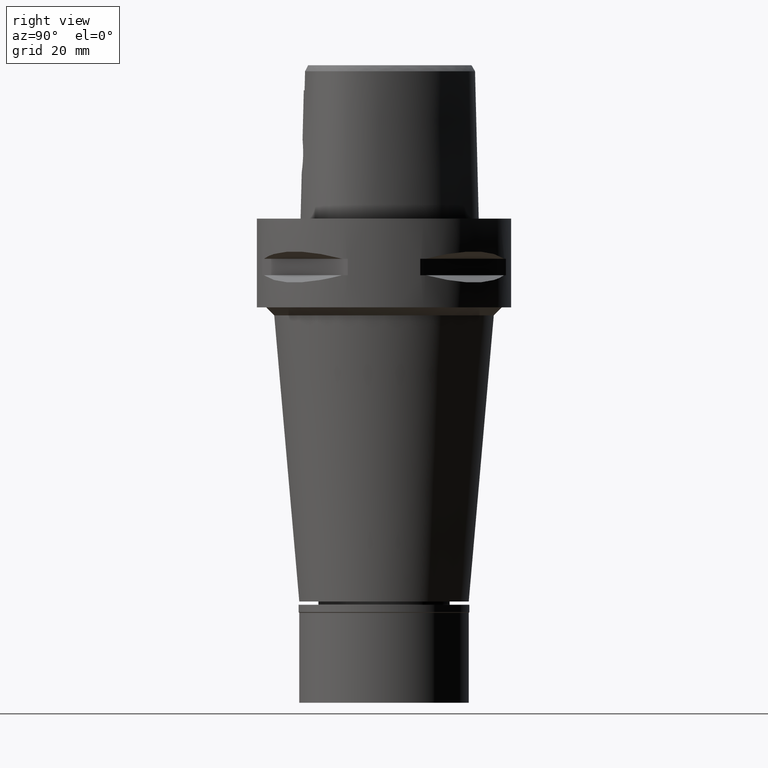
[diagram: clean part render]
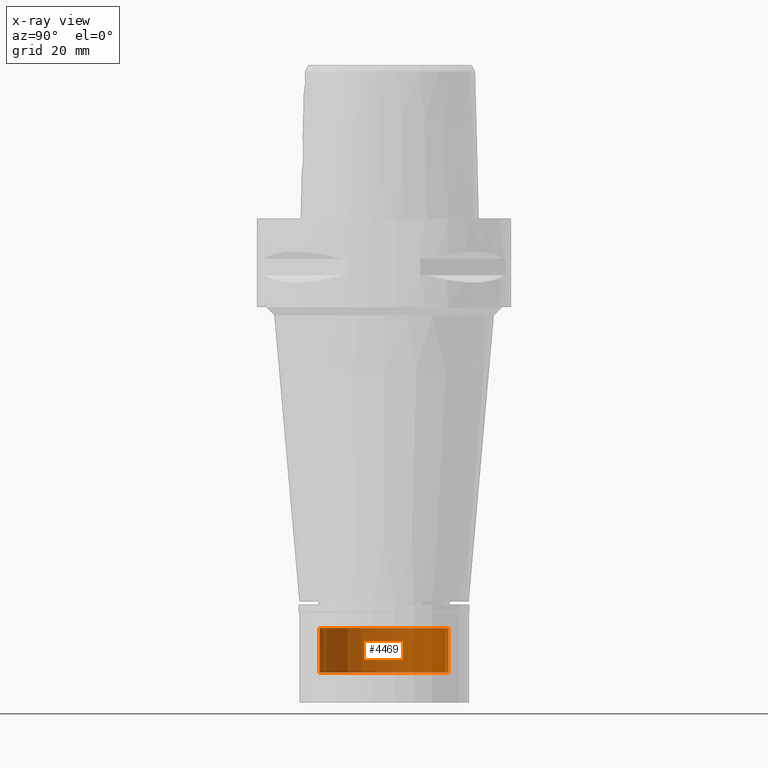
[diagram: x-ray — body ghosted, one internal face saturated and labeled with its STEP entity id]
A machine part, right view, then the same camera in x-ray: the body is ghosted and one INTERNAL B-rep face — a face not visible from any outside direction — is saturated and labeled: STEP entity #4469.
In plain terms, the highlighted cylindrical surface (partial cylindrical patch) has radius 16 mm, axis along (0, 0, -1).
Its self-contained STEP definition (entity closure, byte-faithful):
#73 = DIRECTION ( 'NONE',  ( 0.0000000000000000000, 1.000000000000000000, 0.0000000000000000000 ) ) ;
#275 = EDGE_CURVE ( 'NONE', #2422, #1739, #3498, .T. ) ;
#331 = EDGE_LOOP ( 'NONE', ( #1030, #3202, #4418, #1074 ) ) ;
#435 = DIRECTION ( 'NONE',  ( 0.0000000000000000000, 0.0000000000000000000, 1.000000000000000000 ) ) ;
#541 = CARTESIAN_POINT ( 'NONE',  ( 0.0000000000000000000, -16.00000000000000000, -101.5000000000000000 ) ) ;
#572 = EDGE_CURVE ( 'NONE', #1739, #4861, #2850, .T. ) ;
#717 = DIRECTION ( 'NONE',  ( 0.0000000000000000000, 0.0000000000000000000, -1.000000000000000000 ) ) ;
#819 = CARTESIAN_POINT ( 'NONE',  ( 0.0000000000000000000, -16.00000000000000000, -112.5000000000000000 ) ) ;
#947 = CARTESIAN_POINT ( 'NONE',  ( 0.0000000000000000000, 16.00000000000000000, -101.5000000000000000 ) ) ;
#1030 = ORIENTED_EDGE ( 'NONE', *, *, #5066, .T. ) ;
#1074 = ORIENTED_EDGE ( 'NONE', *, *, #572, .T. ) ;
#1436 = CARTESIAN_POINT ( 'NONE',  ( 0.0000000000000000000, 16.00000000000000000, -112.5000000000000000 ) ) ;
#1497 = CYLINDRICAL_SURFACE ( 'NONE', #3085, 16.00000000000000000 ) ;
#1527 = VECTOR ( 'NONE', #3886, 1000.000000000000000 ) ;
#1659 = EDGE_CURVE ( 'NONE', #2422, #4978, #4073, .T. ) ;
#1739 = VERTEX_POINT ( 'NONE', #947 ) ;
#2295 = DIRECTION ( 'NONE',  ( 0.0000000000000000000, -1.000000000000000000, 0.0000000000000000000 ) ) ;
#2320 = CARTESIAN_POINT ( 'NONE',  ( 0.0000000000000000000, 16.00000000000000000, -101.5000000000000000 ) ) ;
#2422 = VERTEX_POINT ( 'NONE', #4868 ) ;
#2822 = CARTESIAN_POINT ( 'NONE',  ( 0.0000000000000000000, 0.0000000000000000000, -112.5000000000000000 ) ) ;
#2850 = LINE ( 'NONE', #2320, #1527 ) ;
#2865 = AXIS2_PLACEMENT_3D ( 'NONE', #2822, #435, #73 ) ;
#2935 = AXIS2_PLACEMENT_3D ( 'NONE', #3472, #717, #2295 ) ;
#3003 = DIRECTION ( 'NONE',  ( 0.0000000000000000000, 0.0000000000000000000, -1.000000000000000000 ) ) ;
#3069 = DIRECTION ( 'NONE',  ( 0.0000000000000000000, -1.000000000000000000, 0.0000000000000000000 ) ) ;
#3085 = AXIS2_PLACEMENT_3D ( 'NONE', #3428, #3003, #3069 ) ;
#3202 = ORIENTED_EDGE ( 'NONE', *, *, #1659, .F. ) ;
#3428 = CARTESIAN_POINT ( 'NONE',  ( 0.0000000000000000000, 0.0000000000000000000, 5.625000000000000000 ) ) ;
#3450 = FACE_OUTER_BOUND ( 'NONE', #331, .T. ) ;
#3472 = CARTESIAN_POINT ( 'NONE',  ( 0.0000000000000000000, 0.0000000000000000000, -101.5000000000000000 ) ) ;
#3498 = CIRCLE ( 'NONE', #2935, 16.00000000000000000 ) ;
#3590 = VECTOR ( 'NONE', #4535, 1000.000000000000000 ) ;
#3886 = DIRECTION ( 'NONE',  ( 0.0000000000000000000, 0.0000000000000000000, -1.000000000000000000 ) ) ;
#4073 = LINE ( 'NONE', #541, #3590 ) ;
#4418 = ORIENTED_EDGE ( 'NONE', *, *, #275, .T. ) ;
#4422 = CIRCLE ( 'NONE', #2865, 16.00000000000000000 ) ;
#4469 = ADVANCED_FACE ( 'NONE', ( #3450 ), #1497, .T. ) ;
#4535 = DIRECTION ( 'NONE',  ( 0.0000000000000000000, 0.0000000000000000000, -1.000000000000000000 ) ) ;
#4861 = VERTEX_POINT ( 'NONE', #1436 ) ;
#4868 = CARTESIAN_POINT ( 'NONE',  ( 0.0000000000000000000, -16.00000000000000000, -101.5000000000000000 ) ) ;
#4978 = VERTEX_POINT ( 'NONE', #819 ) ;
#5066 = EDGE_CURVE ( 'NONE', #4861, #4978, #4422, .T. ) ;